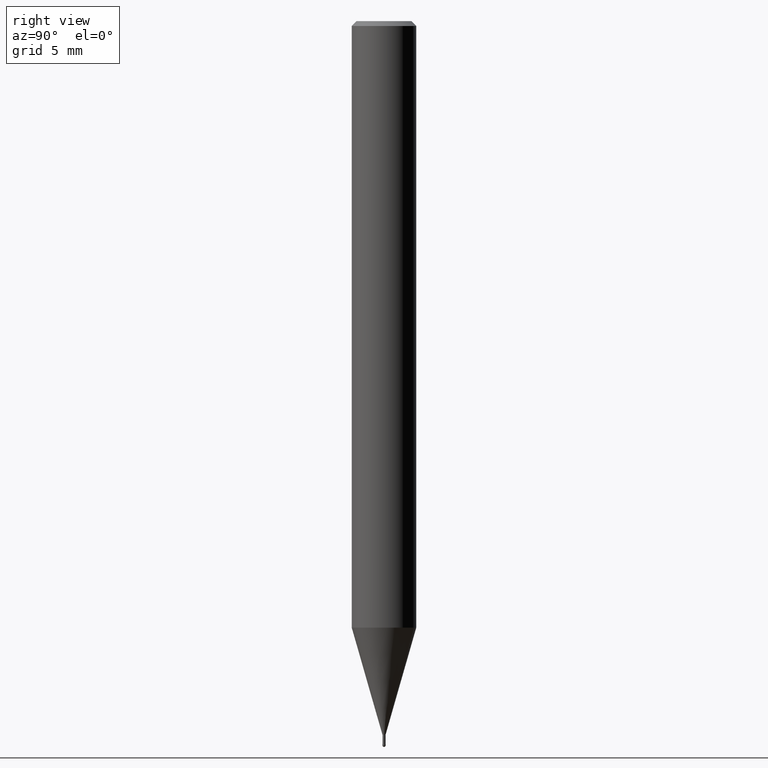
[diagram: clean part render]
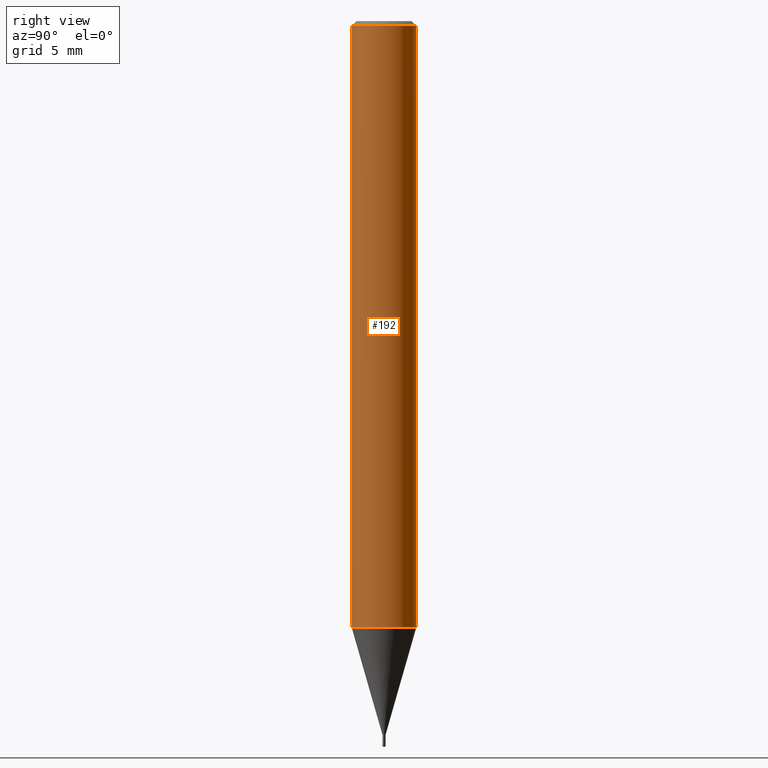
[diagram: same view with one face highlighted and labeled with its STEP entity id]
A machine part, right view. The second image highlights one B-rep face of the part: STEP entity #192.
In plain terms, the highlighted cylindrical surface (edge-blend (fillet) strip) has radius 2 mm, axis along (-0, -0, 1).
Its self-contained STEP definition (entity closure, byte-faithful):
#96=EDGE_CURVE('',#208,#200,#237,.T.);
#98=VERTEX_POINT('',#239);
#144=EDGE_CURVE('',#150,#98,#294,.T.);
#150=VERTEX_POINT('',#300);
#162=EDGE_CURVE('',#150,#200,#313,.T.);
#192=ADVANCED_FACE('',(#349),#350,.T.);
#198=EDGE_CURVE('',#98,#208,#356,.T.);
#200=VERTEX_POINT('',#358);
#208=VERTEX_POINT('',#366);
#237=LINE('',#389,#390);
#239=CARTESIAN_POINT('',(0.0,2.0,-37.606));
#294=LINE('',#459,#460);
#300=CARTESIAN_POINT('',(0.0,2.0,-0.299999999999997));
#313=CIRCLE('',#483,2.0);
#349=FACE_OUTER_BOUND('',#527,.T.);
#350=CYLINDRICAL_SURFACE('',#528,2.0);
#356=CIRCLE('',#538,2.0);
#358=CARTESIAN_POINT('',(2.44921270764475E-016,-2.0,-0.299999999999997));
#366=CARTESIAN_POINT('',(2.44921270764475E-016,-2.0,-37.606));
#389=CARTESIAN_POINT('',(2.44921270764475E-016,-2.0,-18.953));
#390=VECTOR('',#562,1.0);
#459=CARTESIAN_POINT('',(-2.44921270764475E-016,2.0,-18.953));
#460=VECTOR('',#643,1.0);
#483=AXIS2_PLACEMENT_3D('',#661,#662,#663);
#527=EDGE_LOOP('',(#722,#723,#724,#725));
#528=AXIS2_PLACEMENT_3D('',#726,#727,#728);
#538=AXIS2_PLACEMENT_3D('',#733,#734,#735);
#562=DIRECTION('',(-0.0,-0.0,1.0));
#643=DIRECTION('',(0.0,0.0,-1.0));
#661=CARTESIAN_POINT('',(0.0,0.0,-0.299999999999997));
#662=DIRECTION('',(0.0,0.0,-1.0));
#663=DIRECTION('',(0.0,1.0,0.0));
#722=ORIENTED_EDGE('',*,*,#144,.F.);
#723=ORIENTED_EDGE('',*,*,#162,.T.);
#724=ORIENTED_EDGE('',*,*,#96,.F.);
#725=ORIENTED_EDGE('',*,*,#198,.F.);
#726=CARTESIAN_POINT('',(0.0,0.0,-18.953));
#727=DIRECTION('',(-0.0,-0.0,1.0));
#728=DIRECTION('',(0.0,1.0,0.0));
#733=CARTESIAN_POINT('',(0.0,0.0,-37.606));
#734=DIRECTION('',(0.0,0.0,-1.0));
#735=DIRECTION('',(0.0,1.0,0.0));